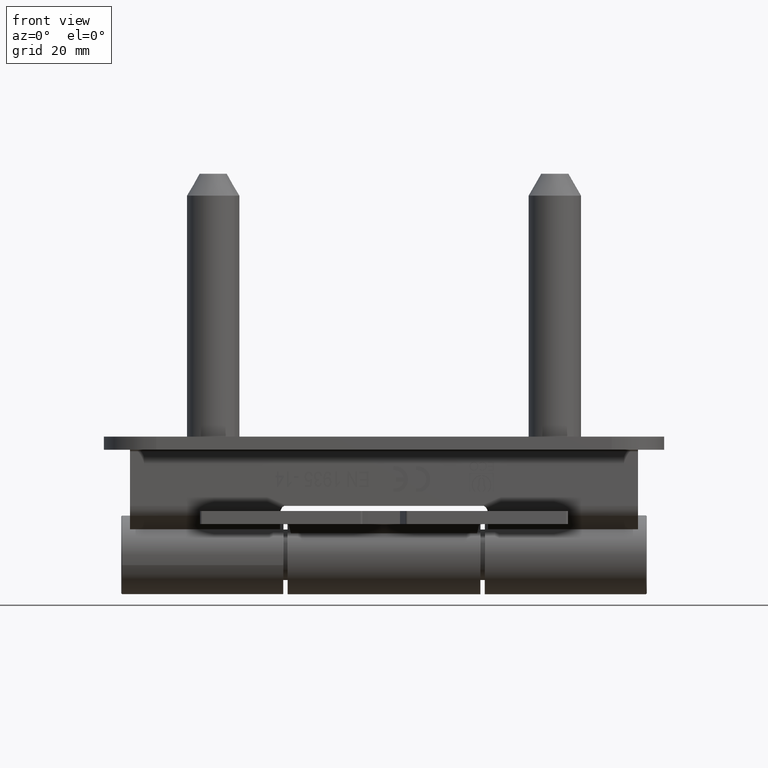
[diagram: clean part render]
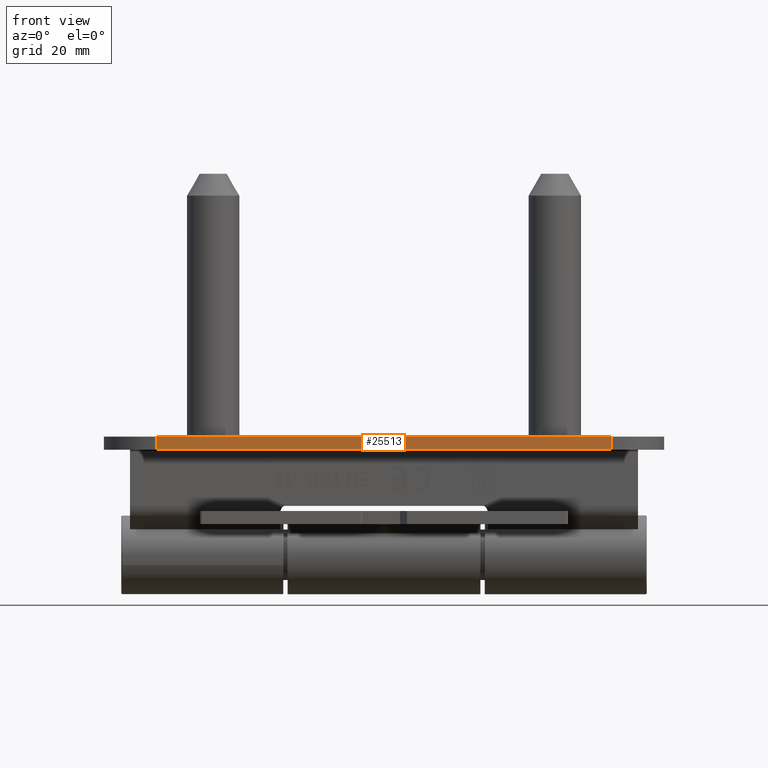
[diagram: same view with one face highlighted and labeled with its STEP entity id]
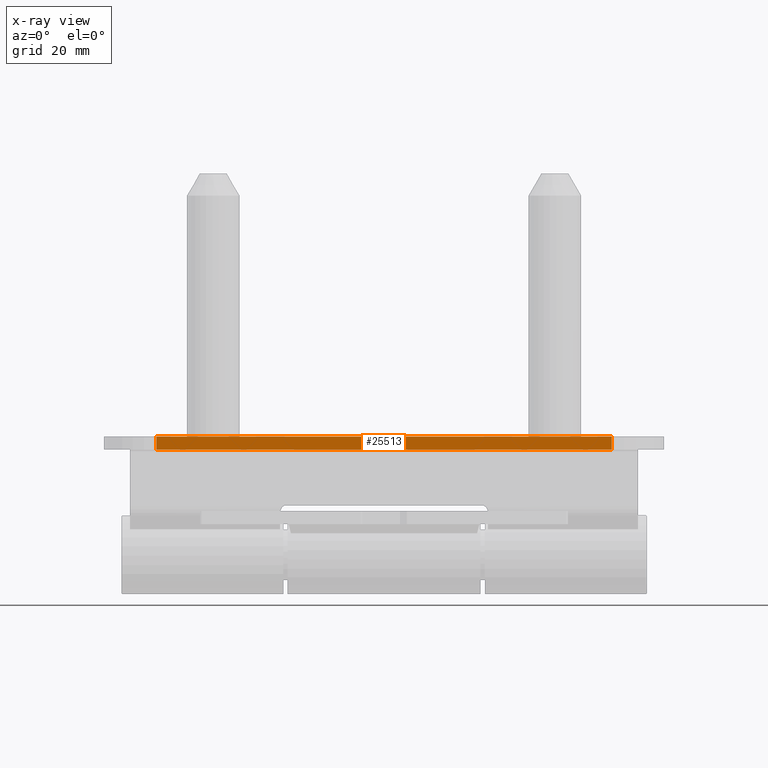
[diagram: x-ray of the same camera — body ghosted, the highlighted face saturated]
A machine part, front view. The second image highlights one B-rep face of the part: STEP entity #25513.
The next image is the same camera in x-ray: the body ghosted, the highlighted face saturated — about 0% of this face is hidden behind the body in this view.
In plain terms, the highlighted planar face has unit normal (-0, -1, 0).
Its self-contained STEP definition (entity closure, byte-faithful):
#110 = VERTEX_POINT ( 'NONE', #41635 ) ;
#3027 = CARTESIAN_POINT ( 'NONE',  ( 0.000000000000000000, 64.00000000000000000, 0.000000000000000000 ) ) ;
#4345 = EDGE_CURVE ( 'NONE', #17510, #29543, #16588, .T. ) ;
#6112 = CARTESIAN_POINT ( 'NONE',  ( 0.000000000000000000, -52.00000000000001421, 0.000000000000000000 ) ) ;
#6536 = VECTOR ( 'NONE', #10623, 1000.000000000000000 ) ;
#9911 = ORIENTED_EDGE ( 'NONE', *, *, #23464, .F. ) ;
#10623 = DIRECTION ( 'NONE',  ( 0.000000000000000000, 0.000000000000000000, 1.000000000000000000 ) ) ;
#11103 = AXIS2_PLACEMENT_3D ( 'NONE', #3027, #11220, #39572 ) ;
#11220 = DIRECTION ( 'NONE',  ( 1.000000000000000000, -8.222287995207818510E-33, -1.224646799147353207E-16 ) ) ;
#12456 = LINE ( 'NONE', #21162, #16613 ) ;
#13602 = ORIENTED_EDGE ( 'NONE', *, *, #4345, .T. ) ;
#16588 = LINE ( 'NONE', #44669, #33280 ) ;
#16613 = VECTOR ( 'NONE', #17458, 1000.000000000000000 ) ;
#16979 = DIRECTION ( 'NONE',  ( -2.813920346397899413E-33, -1.000000000000000000, 0.000000000000000000 ) ) ;
#17245 = CARTESIAN_POINT ( 'NONE',  ( 0.000000000000000000, 64.00000000000000000, 0.000000000000000000 ) ) ;
#17458 = DIRECTION ( 'NONE',  ( 0.000000000000000000, 0.000000000000000000, 1.000000000000000000 ) ) ;
#17510 = VERTEX_POINT ( 'NONE', #40332 ) ;
#21162 = CARTESIAN_POINT ( 'NONE',  ( 0.000000000000000000, 51.99999999999998579, 0.000000000000000000 ) ) ;
#21561 = VERTEX_POINT ( 'NONE', #34311 ) ;
#23464 = EDGE_CURVE ( 'NONE', #21561, #29543, #42651, .T. ) ;
#25197 = LINE ( 'NONE', #17245, #50816 ) ;
#25513 = ADVANCED_FACE ( 'NONE', ( #27366 ), #39302, .T. ) ;
#27366 = FACE_OUTER_BOUND ( 'NONE', #28584, .T. ) ;
#28489 = CARTESIAN_POINT ( 'NONE',  ( 0.000000000000000000, -52.00000000000001421, 3.000000000000000000 ) ) ;
#28584 = EDGE_LOOP ( 'NONE', ( #13602, #9911, #43794, #50506 ) ) ;
#29543 = VERTEX_POINT ( 'NONE', #28489 ) ;
#33280 = VECTOR ( 'NONE', #39896, 1000.000000000000000 ) ;
#34311 = CARTESIAN_POINT ( 'NONE',  ( 0.000000000000000000, -52.00000000000001421, 0.000000000000000000 ) ) ;
#36937 = EDGE_CURVE ( 'NONE', #110, #17510, #12456, .T. ) ;
#39302 = PLANE ( 'NONE',  #11103 ) ;
#39572 = DIRECTION ( 'NONE',  ( -1.224646799147353207E-16, 0.000000000000000000, -1.000000000000000000 ) ) ;
#39896 = DIRECTION ( 'NONE',  ( -2.813920346397899413E-33, -1.000000000000000000, 0.000000000000000000 ) ) ;
#40332 = CARTESIAN_POINT ( 'NONE',  ( 0.000000000000000000, 51.99999999999998579, 3.000000000000000000 ) ) ;
#41635 = CARTESIAN_POINT ( 'NONE',  ( 0.000000000000000000, 51.99999999999998579, 0.000000000000000000 ) ) ;
#42651 = LINE ( 'NONE', #6112, #6536 ) ;
#43794 = ORIENTED_EDGE ( 'NONE', *, *, #52175, .F. ) ;
#44669 = CARTESIAN_POINT ( 'NONE',  ( 0.000000000000000000, 64.00000000000000000, 3.000000000000000000 ) ) ;
#50506 = ORIENTED_EDGE ( 'NONE', *, *, #36937, .T. ) ;
#50816 = VECTOR ( 'NONE', #16979, 1000.000000000000000 ) ;
#52175 = EDGE_CURVE ( 'NONE', #110, #21561, #25197, .T. ) ;